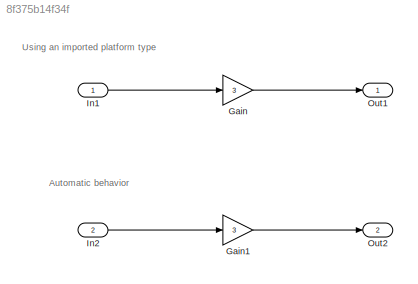
MODEL slx_8f375b14f34f
KIND model
CONFIG AbsTol = auto
CONFIG EnableMultiTasking = off
CONFIG FixedStep = auto
CONFIG MaxStep = auto
CONFIG MinStep = auto
CONFIG RelTol = 1e-3
CONFIG SampleTimeConstraint = Unconstrained
CONFIG Solver = FixedStepAuto
CONFIG SolverName = FixedStepAuto
CONFIG StartTime = 0.0
CONFIG StopTime = 10.0
BLOCK [Gain] Gain
  Gain = 3
  RndMeth = Simplest
  SaturateOnIntegerOverflow = off
BLOCK [Gain] Gain1
  Gain = 3
  RndMeth = Simplest
  SaturateOnIntegerOverflow = off
BLOCK [Inport] In1
  IconDisplay = Port number
  OutDataTypeStr = int64_t
BLOCK [Inport] In2
  IconDisplay = Port number
  OutDataTypeStr = fixdt(0,64,0)
  Port = 2
BLOCK [Outport] Out1
  IconDisplay = Port number
BLOCK [Outport] Out2
  IconDisplay = Port number
  Port = 2
ANNOTATION (root): Automatic behavior
ANNOTATION (root): Using an imported platform type
LINE Gain1:1 -> Out2:1
LINE Gain:1 -> Out1:1
LINE In1:1 -> Gain:1
LINE In2:1 -> Gain1:1
